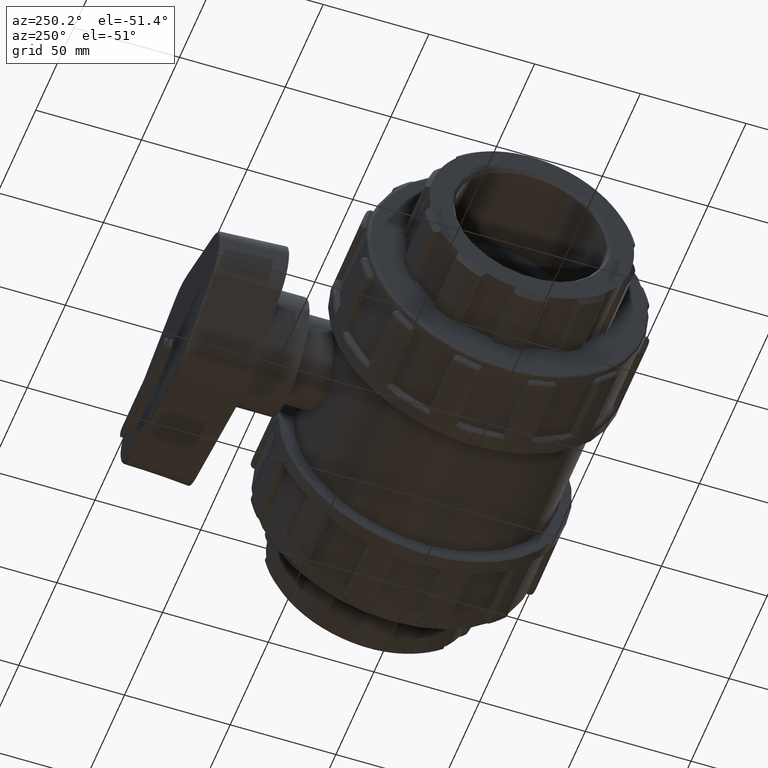
[diagram: clean part render]
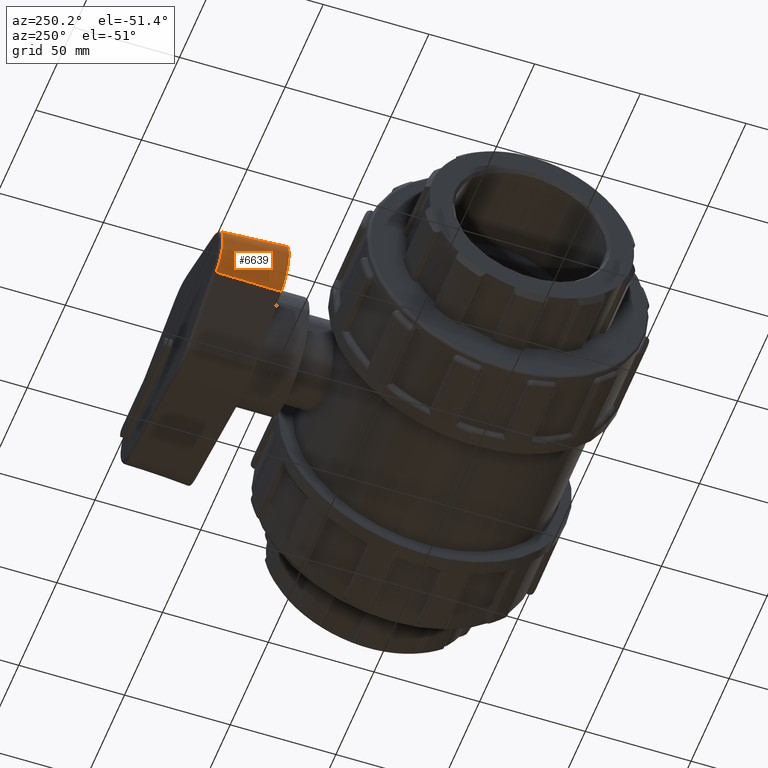
[diagram: same view with one face highlighted and labeled with its STEP entity id]
A machine part, auxiliary view. The second image highlights one B-rep face of the part: STEP entity #6639.
In plain terms, the highlighted conical surface has half-angle 3 deg.
Its self-contained STEP definition (entity closure, byte-faithful):
#343=CONICAL_SURFACE('',#7100,13.9,3.);
#442=FACE_OUTER_BOUND('',#878,.T.);
#878=EDGE_LOOP('',(#4422,#4423,#4424,#4425));
#1339=LINE('',#10414,#1735);
#1341=LINE('',#10417,#1737);
#1735=VECTOR('',#8123,30.6731167760225);
#1737=VECTOR('',#8127,30.6731167760225);
#2118=CIRCLE('',#7071,13.9717420396327);
#2129=CIRCLE('',#7095,15.5770489370573);
#2635=VERTEX_POINT('',#10339);
#2637=VERTEX_POINT('',#10345);
#2655=VERTEX_POINT('',#10406);
#2656=VERTEX_POINT('',#10408);
#3287=EDGE_CURVE('',#2635,#2637,#2118,.T.);
#3316=EDGE_CURVE('',#2656,#2655,#2129,.T.);
#3319=EDGE_CURVE('',#2637,#2655,#1339,.T.);
#3321=EDGE_CURVE('',#2635,#2656,#1341,.T.);
#4422=ORIENTED_EDGE('',*,*,#3287,.F.);
#4423=ORIENTED_EDGE('',*,*,#3321,.T.);
#4424=ORIENTED_EDGE('',*,*,#3316,.T.);
#4425=ORIENTED_EDGE('',*,*,#3319,.F.);
#6639=ADVANCED_FACE('',(#442),#343,.T.);
#7071=AXIS2_PLACEMENT_3D('',#10349,#8050,#8051);
#7095=AXIS2_PLACEMENT_3D('',#10409,#8116,#8117);
#7100=AXIS2_PLACEMENT_3D('',#10419,#8130,#8131);
#8050=DIRECTION('center_axis',(0.,1.,0.));
#8051=DIRECTION('ref_axis',(-1.,0.,1.76441156859526E-32));
#8116=DIRECTION('center_axis',(-3.01515467405474E-16,1.,0.));
#8117=DIRECTION('ref_axis',(1.,3.01515467405474E-16,0.));
#8123=DIRECTION('',(-0.0183704492872956,-0.998629534754574,0.0490059068770921));
#8127=DIRECTION('',(-0.0183704492872956,-0.998629534754574,-0.0490059068770921));
#8130=DIRECTION('center_axis',(2.77555756156289E-16,-1.,0.));
#8131=DIRECTION('ref_axis',(1.,3.01515467405474E-16,0.));
#10339=CARTESIAN_POINT('',(-44.5042225846186,126.631080335512,-13.0827434608555));
#10345=CARTESIAN_POINT('',(-44.5042225846186,126.631080335512,13.0827434608555));
#10349=CARTESIAN_POINT('Origin',(-39.6,126.631080335512,-1.71104491673487E-15));
#10406=CARTESIAN_POINT('',(-45.0677015208358,96.,14.5859073652114));
#10408=CARTESIAN_POINT('',(-45.0677015208358,96.,-14.5859073652114));
#10409=CARTESIAN_POINT('Origin',(-39.6,96.,0.));
#10414=CARTESIAN_POINT('',(-44.4790404040404,128.,13.0155662472188));
#10417=CARTESIAN_POINT('',(-44.4790404040404,128.,-13.0155662472188));
#10419=CARTESIAN_POINT('Origin',(-39.6,128.,0.));